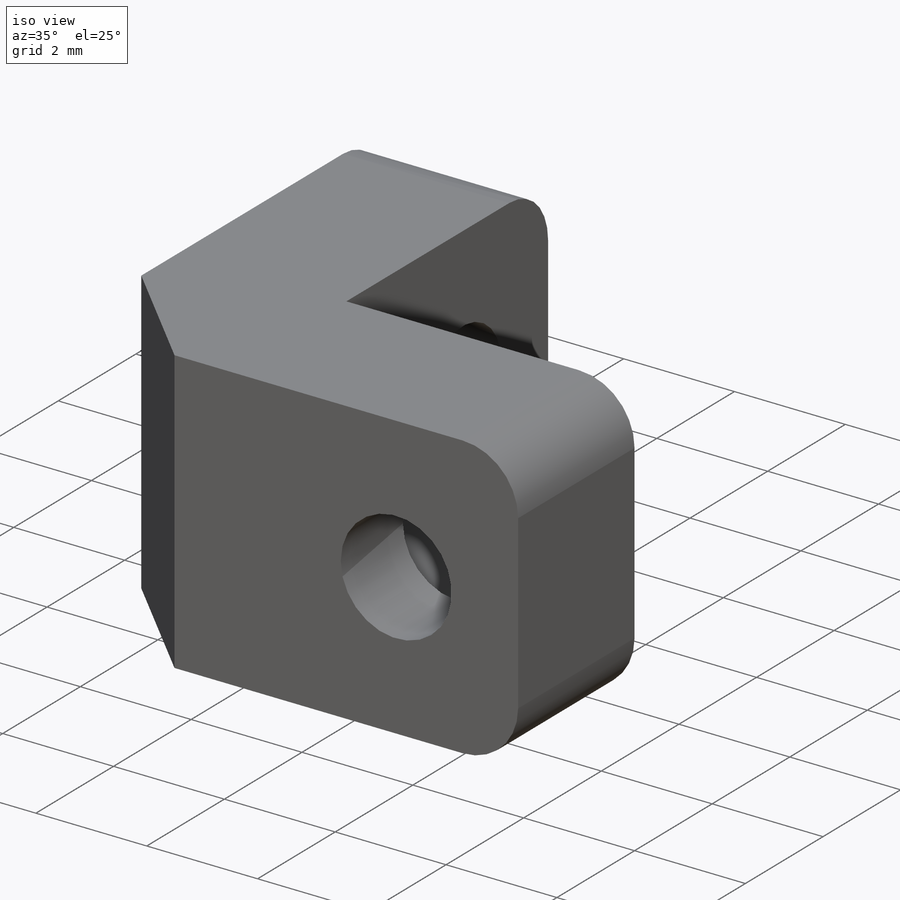
[diagram: iso view]
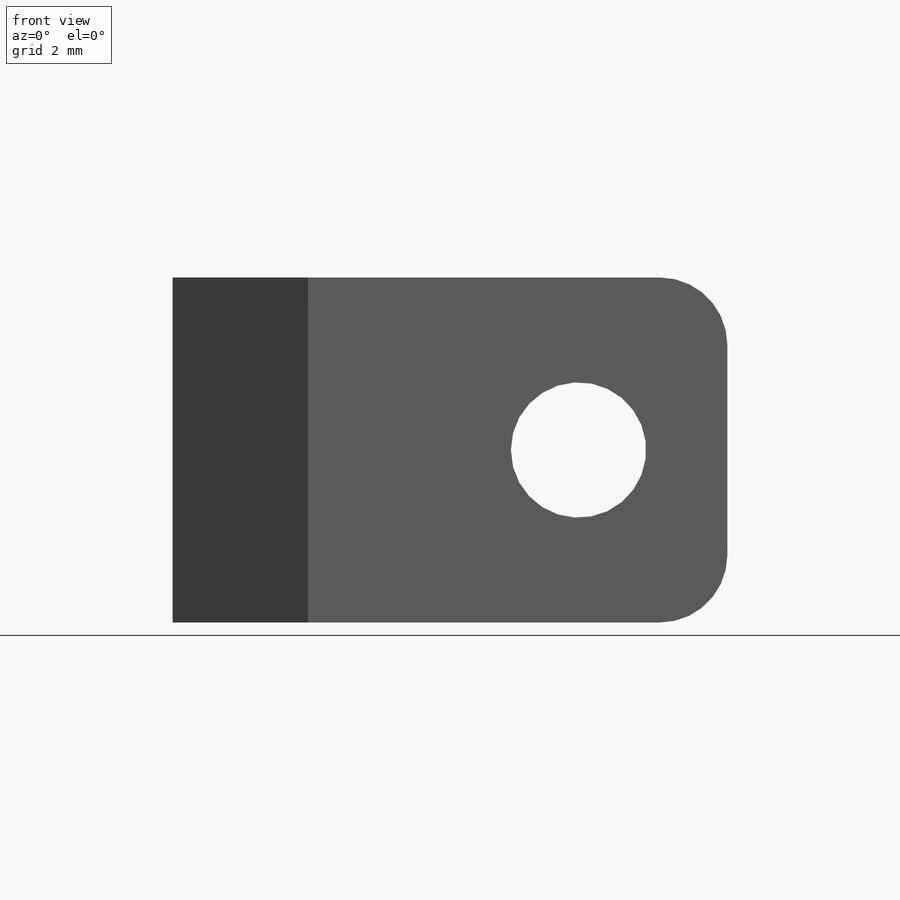
[diagram: front view]
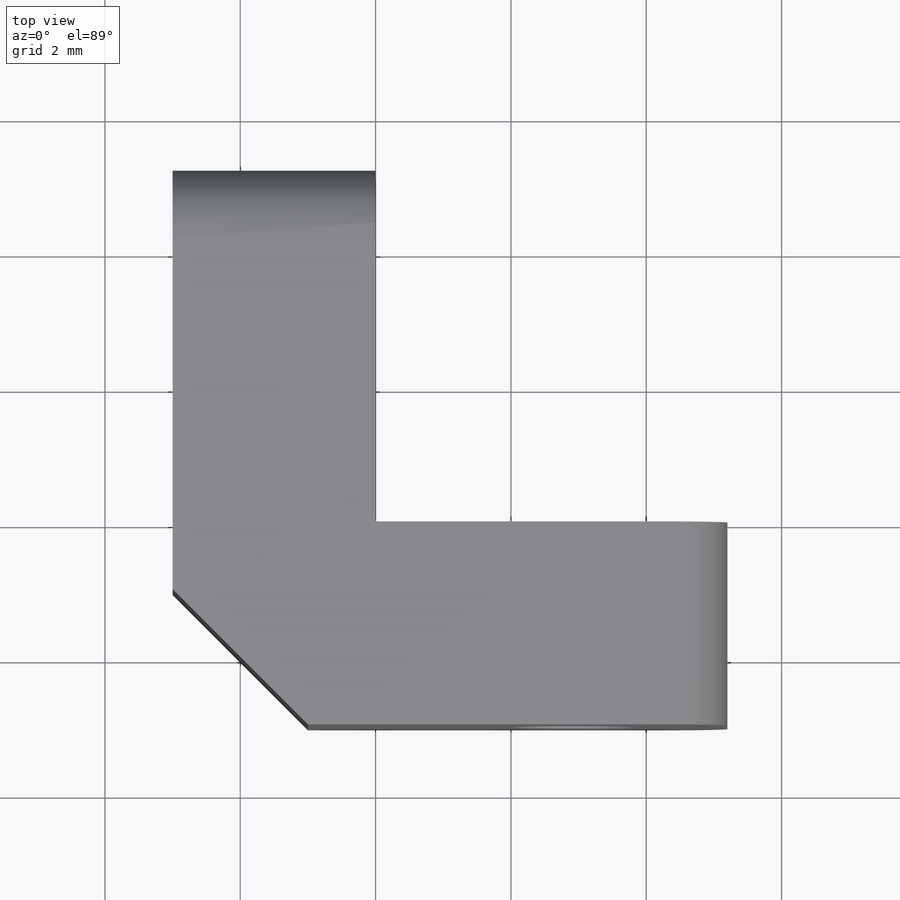
[diagram: top view]
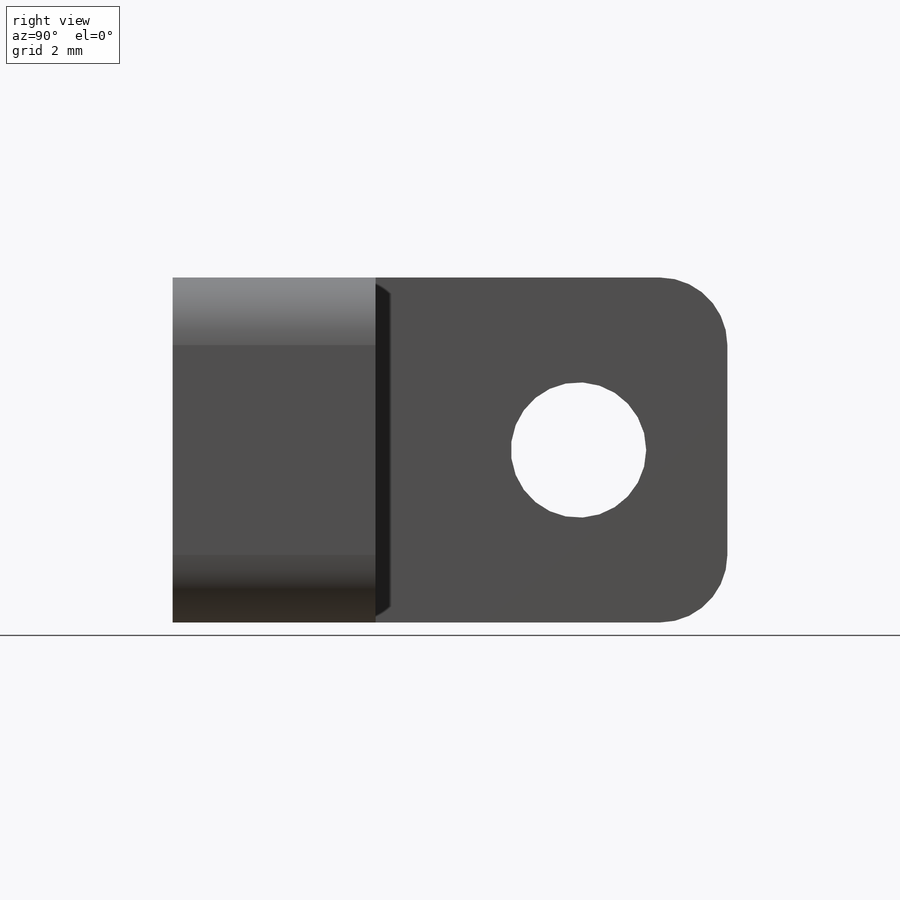
[diagram: right view]
SOLIDWORKS PART (.sldprt)
format: sldprt  version: not decoded by parser v0  size: 198,656 bytes
history: native  units: mm
features: sketch x5, cut_extrude x4, material x1, extrude x1, chamfer x1, fillet x1 (+12 scaffold rows collapsed)
feature tree (25):
  scaffold x12  (default folders/planes/origin — collapsed)
  material  "Custom Plastic"
  sketch  "Sketch1"  dims[D1=5.2mm D2=3.0mm D3=8.2mm D4=8.2mm D5=3.0mm]
  extrude  "Boss-Extrude1"  Depth=5.1mm
  chamfer  "Chamfer1"  Distance=2mm Angle=45deg
  fillet  "Fillet1"  Radius=1mm
  sketch  "Sketch3"  dims[c1.D3=2.0mm c1.D1=3.0mm c1.D2=2.55mm c2.D1=3.0mm c2.D4=2.2mm]
  cut_extrude  "Cut-Extrude1"  Depth=5.1mm
  sketch  "Sketch4"  dims[D3=2.0mm D1=2.55mm D2=3.0mm]
  cut_extrude  "Cut-Extrude2"  Depth=5.1mm
  sketch  "Sketch5"  dims[D1=3.4mm]
  cut_extrude  "Cut-Extrude3"  Depth=1.4mm
  sketch  "Sketch6"  dims[D1=3.4mm]
  cut_extrude  "Cut-Extrude4"  Depth=1.4mm
decode coverage: 12 of 12 modeling features carry decoded parameters
note: suppression state not decoded; provenance and decode notes live in map.json
